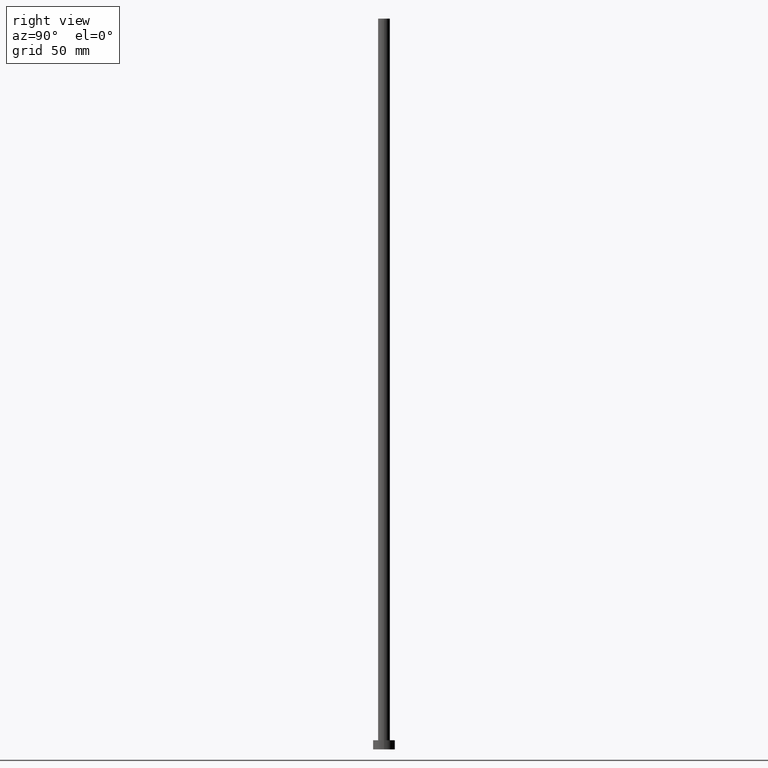
[diagram: clean part render]
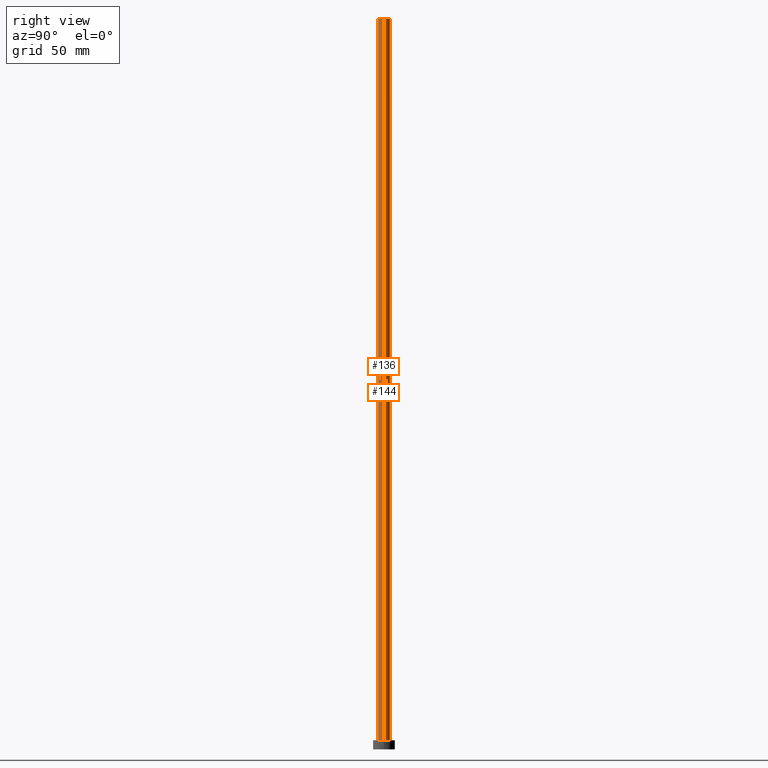
[diagram: same view with one multi-face feature highlighted, each face labeled with its STEP entity id]
A machine part, right view. The highlighted faces form ONE feature: a constant-radius fillet chain: 2 tangent blend faces with common blend radius 3.25 mm. The faces share edges in the B-rep.
Their STEP definitions:
[1] entity #144 (Cylinder):
#1 = EDGE_CURVE ( 'NONE', #215, #181, #124, .T. ) ;
#12 = AXIS2_PLACEMENT_3D ( 'NONE', #82, #46, #99 ) ;
#22 = CARTESIAN_POINT ( 'NONE',  ( -3.250000000000000444, 0.000000000000000000, 400.0000000000000000 ) ) ;
#40 = LINE ( 'NONE', #22, #90 ) ;
#46 = DIRECTION ( 'NONE',  ( 0.000000000000000000, 0.000000000000000000, 1.000000000000000000 ) ) ;
#50 = FACE_OUTER_BOUND ( 'NONE', #183, .T. ) ;
#60 = CIRCLE ( 'NONE', #111, 3.250000000000000444 ) ;
#79 = CARTESIAN_POINT ( 'NONE',  ( 3.250000000000000444, 3.980102097228897245E-16, 5.000000000000000000 ) ) ;
#82 = CARTESIAN_POINT ( 'NONE',  ( 0.000000000000000000, 0.000000000000000000, 5.000000000000000000 ) ) ;
#90 = VECTOR ( 'NONE', #252, 1000.000000000000000 ) ;
#92 = ORIENTED_EDGE ( 'NONE', *, *, #207, .T. ) ;
#95 = ORIENTED_EDGE ( 'NONE', *, *, #242, .F. ) ;
#96 = DIRECTION ( 'NONE',  ( 0.000000000000000000, 0.000000000000000000, 1.000000000000000000 ) ) ;
#99 = DIRECTION ( 'NONE',  ( 1.000000000000000000, 0.000000000000000000, 0.000000000000000000 ) ) ;
#104 = CARTESIAN_POINT ( 'NONE',  ( 3.250000000000000444, 3.980102097228897245E-16, 400.0000000000000000 ) ) ;
#107 = CARTESIAN_POINT ( 'NONE',  ( -3.250000000000000444, 0.000000000000000000, 400.0000000000000000 ) ) ;
#111 = AXIS2_PLACEMENT_3D ( 'NONE', #116, #96, #184 ) ;
#116 = CARTESIAN_POINT ( 'NONE',  ( 0.000000000000000000, 0.000000000000000000, 400.0000000000000000 ) ) ;
#120 = AXIS2_PLACEMENT_3D ( 'NONE', #230, #129, #212 ) ;
#122 = CARTESIAN_POINT ( 'NONE',  ( -3.250000000000000444, 0.000000000000000000, 5.000000000000000000 ) ) ;
#124 = CIRCLE ( 'NONE', #12, 3.250000000000000444 ) ;
#129 = DIRECTION ( 'NONE',  ( -0.000000000000000000, -0.000000000000000000, -1.000000000000000000 ) ) ;
#132 = VERTEX_POINT ( 'NONE', #104 ) ;
#134 = ORIENTED_EDGE ( 'NONE', *, *, #244, .F. ) ;
#142 = VERTEX_POINT ( 'NONE', #107 ) ;
#144 = ADVANCED_FACE ( 'NONE', ( #50 ), #232, .T. ) ;
#170 = CARTESIAN_POINT ( 'NONE',  ( 3.250000000000000444, 3.980102097228897245E-16, 400.0000000000000000 ) ) ;
#181 = VERTEX_POINT ( 'NONE', #122 ) ;
#183 = EDGE_LOOP ( 'NONE', ( #95, #92, #228, #134 ) ) ;
#184 = DIRECTION ( 'NONE',  ( 1.000000000000000000, 0.000000000000000000, 0.000000000000000000 ) ) ;
#206 = LINE ( 'NONE', #170, #218 ) ;
#207 = EDGE_CURVE ( 'NONE', #132, #215, #206, .T. ) ;
#212 = DIRECTION ( 'NONE',  ( -1.000000000000000000, 0.000000000000000000, 0.000000000000000000 ) ) ;
#215 = VERTEX_POINT ( 'NONE', #79 ) ;
#218 = VECTOR ( 'NONE', #253, 1000.000000000000000 ) ;
#228 = ORIENTED_EDGE ( 'NONE', *, *, #1, .T. ) ;
#230 = CARTESIAN_POINT ( 'NONE',  ( 0.000000000000000000, 0.000000000000000000, 400.0000000000000000 ) ) ;
#232 = CYLINDRICAL_SURFACE ( 'NONE', #120, 3.250000000000000444 ) ;
#242 = EDGE_CURVE ( 'NONE', #132, #142, #60, .T. ) ;
#244 = EDGE_CURVE ( 'NONE', #142, #181, #40, .T. ) ;
#252 = DIRECTION ( 'NONE',  ( -0.000000000000000000, -0.000000000000000000, -1.000000000000000000 ) ) ;
#253 = DIRECTION ( 'NONE',  ( -0.000000000000000000, -0.000000000000000000, -1.000000000000000000 ) ) ;
[2] entity #136 (Cylinder):
#7 = DIRECTION ( 'NONE',  ( 1.000000000000000000, 0.000000000000000000, 0.000000000000000000 ) ) ;
#22 = CARTESIAN_POINT ( 'NONE',  ( -3.250000000000000444, 0.000000000000000000, 400.0000000000000000 ) ) ;
#27 = DIRECTION ( 'NONE',  ( -0.000000000000000000, -0.000000000000000000, -1.000000000000000000 ) ) ;
#40 = LINE ( 'NONE', #22, #90 ) ;
#41 = CIRCLE ( 'NONE', #146, 3.250000000000000444 ) ;
#43 = DIRECTION ( 'NONE',  ( 0.000000000000000000, 0.000000000000000000, 1.000000000000000000 ) ) ;
#54 = CARTESIAN_POINT ( 'NONE',  ( 0.000000000000000000, 0.000000000000000000, 400.0000000000000000 ) ) ;
#74 = CYLINDRICAL_SURFACE ( 'NONE', #88, 3.250000000000000444 ) ;
#78 = DIRECTION ( 'NONE',  ( 1.000000000000000000, 0.000000000000000000, 0.000000000000000000 ) ) ;
#79 = CARTESIAN_POINT ( 'NONE',  ( 3.250000000000000444, 3.980102097228897245E-16, 5.000000000000000000 ) ) ;
#87 = CARTESIAN_POINT ( 'NONE',  ( 0.000000000000000000, 0.000000000000000000, 400.0000000000000000 ) ) ;
#88 = AXIS2_PLACEMENT_3D ( 'NONE', #87, #27, #199 ) ;
#90 = VECTOR ( 'NONE', #252, 1000.000000000000000 ) ;
#98 = ORIENTED_EDGE ( 'NONE', *, *, #244, .T. ) ;
#104 = CARTESIAN_POINT ( 'NONE',  ( 3.250000000000000444, 3.980102097228897245E-16, 400.0000000000000000 ) ) ;
#107 = CARTESIAN_POINT ( 'NONE',  ( -3.250000000000000444, 0.000000000000000000, 400.0000000000000000 ) ) ;
#122 = CARTESIAN_POINT ( 'NONE',  ( -3.250000000000000444, 0.000000000000000000, 5.000000000000000000 ) ) ;
#132 = VERTEX_POINT ( 'NONE', #104 ) ;
#136 = ADVANCED_FACE ( 'NONE', ( #137 ), #74, .T. ) ;
#137 = FACE_OUTER_BOUND ( 'NONE', #251, .T. ) ;
#139 = DIRECTION ( 'NONE',  ( 0.000000000000000000, 0.000000000000000000, 1.000000000000000000 ) ) ;
#142 = VERTEX_POINT ( 'NONE', #107 ) ;
#146 = AXIS2_PLACEMENT_3D ( 'NONE', #54, #139, #7 ) ;
#150 = CIRCLE ( 'NONE', #188, 3.250000000000000444 ) ;
#162 = EDGE_CURVE ( 'NONE', #142, #132, #41, .T. ) ;
#170 = CARTESIAN_POINT ( 'NONE',  ( 3.250000000000000444, 3.980102097228897245E-16, 400.0000000000000000 ) ) ;
#179 = EDGE_CURVE ( 'NONE', #181, #215, #150, .T. ) ;
#181 = VERTEX_POINT ( 'NONE', #122 ) ;
#185 = CARTESIAN_POINT ( 'NONE',  ( 0.000000000000000000, 0.000000000000000000, 5.000000000000000000 ) ) ;
#188 = AXIS2_PLACEMENT_3D ( 'NONE', #185, #43, #78 ) ;
#199 = DIRECTION ( 'NONE',  ( -1.000000000000000000, 0.000000000000000000, 0.000000000000000000 ) ) ;
#205 = ORIENTED_EDGE ( 'NONE', *, *, #207, .F. ) ;
#206 = LINE ( 'NONE', #170, #218 ) ;
#207 = EDGE_CURVE ( 'NONE', #132, #215, #206, .T. ) ;
#215 = VERTEX_POINT ( 'NONE', #79 ) ;
#218 = VECTOR ( 'NONE', #253, 1000.000000000000000 ) ;
#244 = EDGE_CURVE ( 'NONE', #142, #181, #40, .T. ) ;
#248 = ORIENTED_EDGE ( 'NONE', *, *, #179, .T. ) ;
#251 = EDGE_LOOP ( 'NONE', ( #205, #254, #98, #248 ) ) ;
#252 = DIRECTION ( 'NONE',  ( -0.000000000000000000, -0.000000000000000000, -1.000000000000000000 ) ) ;
#253 = DIRECTION ( 'NONE',  ( -0.000000000000000000, -0.000000000000000000, -1.000000000000000000 ) ) ;
#254 = ORIENTED_EDGE ( 'NONE', *, *, #162, .F. ) ;